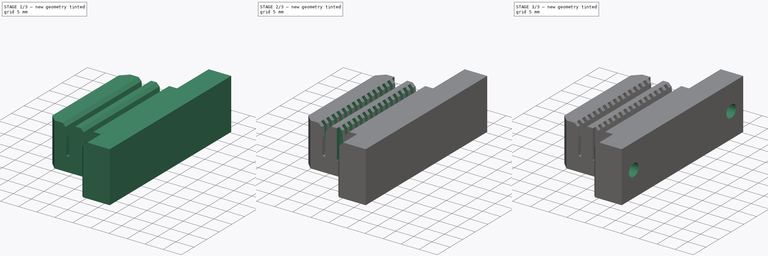
[diagram: build sequence overview — one tinted view per stage of 3, left to right]
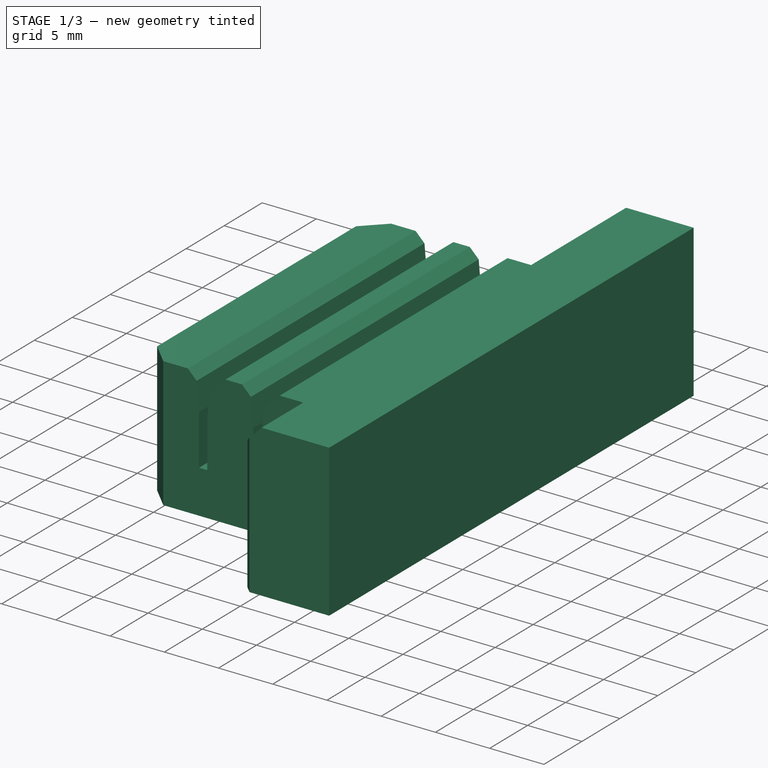
[diagram: stage 1 of 3 — iso view after this stage's code; geometry added in this stage tinted green]
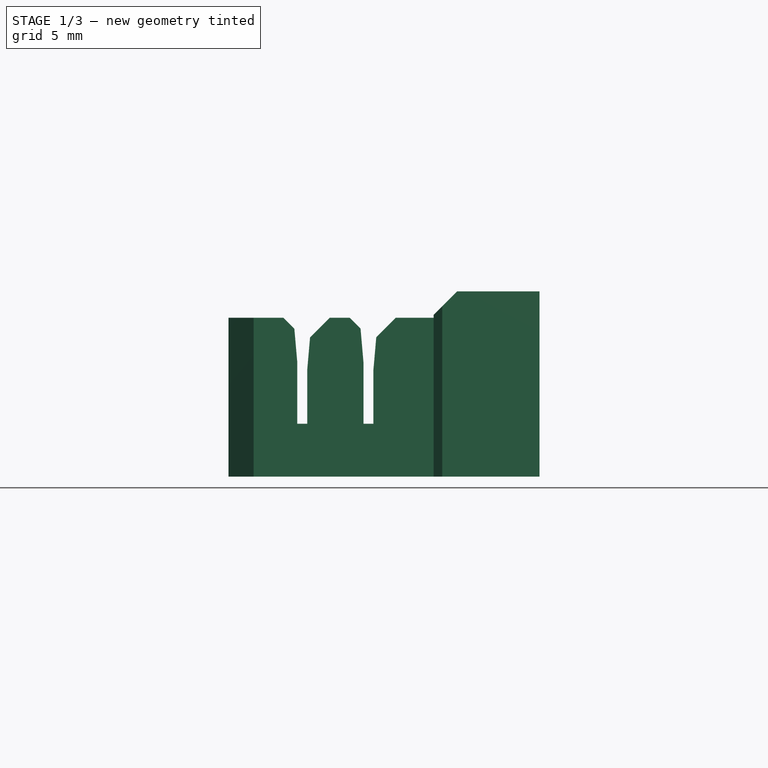
[diagram: stage 1 of 3 — front view after this stage's code; geometry added in this stage tinted green]
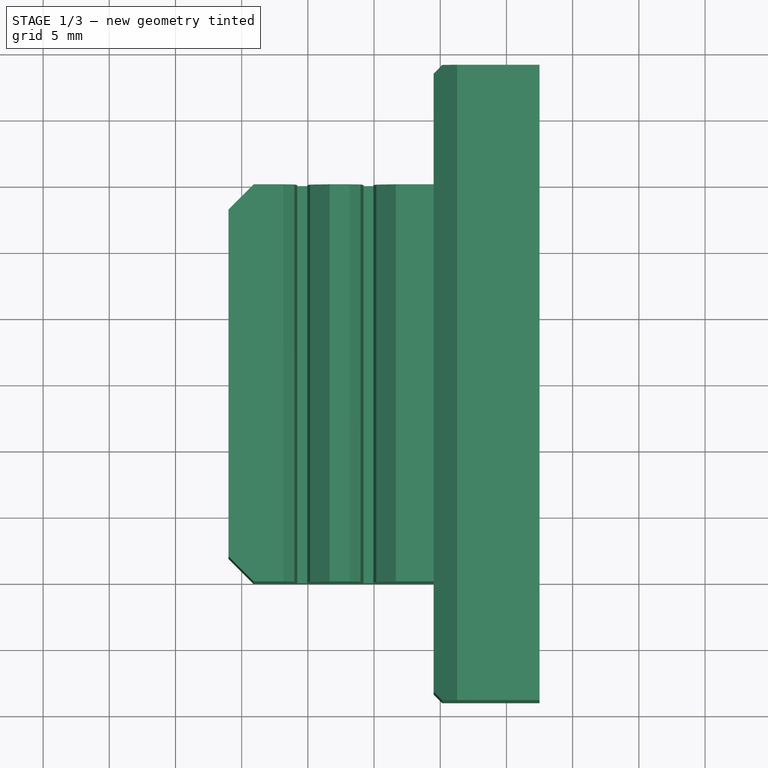
[diagram: stage 1 of 3 — top view after this stage's code; geometry added in this stage tinted green]
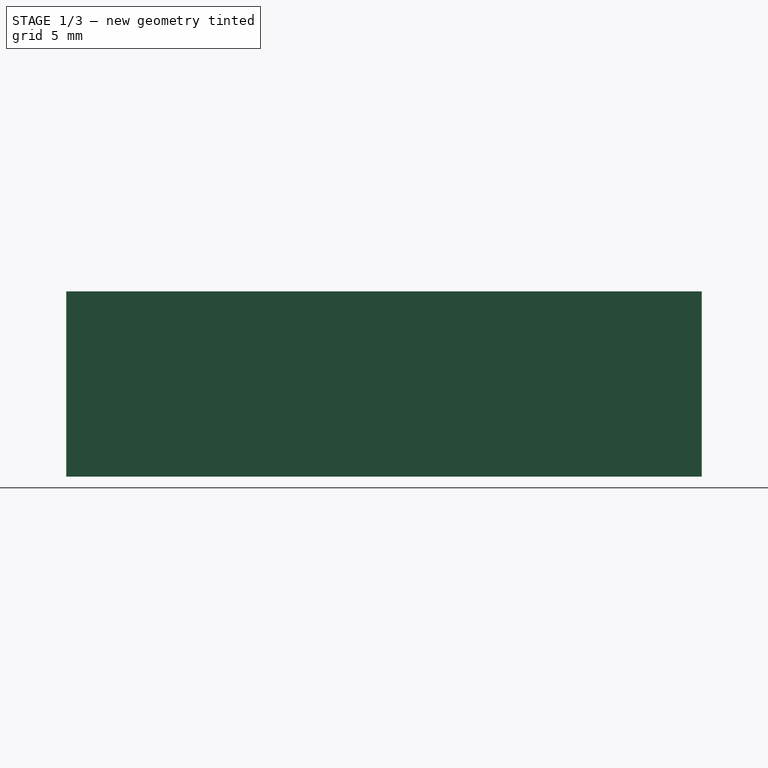
[diagram: stage 1 of 3 — right view after this stage's code; geometry added in this stage tinted green]
FCSTD DOCUMENT  (FreeCAD 0.21R33771 (Git))
Label: _Y-Belt-Holder
License: Creative Commons Attribution 4.0
LicenseURL: https://creativecommons.org/licenses/by/4.0/
objects: Sketcher::SketchObject×5, PartDesign::Pocket×4, PartDesign::Pad×1, PartDesign::LinearPattern×1, PartDesign::Body×1
note: 17 computed .brp shape members not serialized (recipe doc carries the construction recipe); baked Part::Feature solids carry a one-line shape summary decoded from their .brp

FEATURE [Sketcher::SketchObject] Sketch
  FullyConstrained = true
  MapMode = 5
  Support = -> [XY_Plane]
  sketch-geometry (12):
    g0: LineSegment StartX=12.5 StartY=24 StartZ=0 EndX=12.5 EndY=-24 EndZ=0
    g1: LineSegment StartX=12.5 StartY=-24 StartZ=0 EndX=5.15 EndY=-24 EndZ=0
    g2: LineSegment StartX=5.15 StartY=-24 StartZ=0 EndX=4.5 EndY=-23.35 EndZ=0
    g3: LineSegment StartX=4.5 StartY=-23.35 StartZ=0 EndX=4.5 EndY=-15 EndZ=0
    g4: LineSegment StartX=4.5 StartY=-15 StartZ=0 EndX=-9.1 EndY=-15 EndZ=0
    g5: LineSegment StartX=-9.1 StartY=-15 StartZ=0 EndX=-11 EndY=-13.1 EndZ=0
    g6: LineSegment StartX=-11 StartY=-13.1 StartZ=0 EndX=-11 EndY=13.1 EndZ=0
    g7: LineSegment StartX=-11 StartY=13.1 StartZ=0 EndX=-9.1 EndY=15 EndZ=0
    g8: LineSegment StartX=-9.1 StartY=15 StartZ=0 EndX=4.5 EndY=15 EndZ=0
    g9: LineSegment StartX=4.5 StartY=15 StartZ=0 EndX=4.5 EndY=23.35 EndZ=0
    g10: LineSegment StartX=4.5 StartY=23.35 StartZ=0 EndX=5.15 EndY=24 EndZ=0
    g11: LineSegment StartX=5.15 StartY=24 StartZ=0 EndX=12.5 EndY=24 EndZ=0
  constraints (34):
    c: Coincident(g0,g1)
    c: Horizontal(g1)
    c: Coincident(g1,g2)
    c: Coincident(g2,g3)
    c: Vertical(g3)
    c: Coincident(g3,g4)
    c: Horizontal(g4)
    c: Coincident(g4,g5)
    c: Coincident(g5,g6)
    c: Coincident(g6,g7)
    c: Coincident(g7,g8)
    c: Horizontal(g8)
    c: Coincident(g8,g9)
    c: Vertical(g9)
    c: Coincident(g9,g10)
    c: Coincident(g10,g11)
    c: Coincident(g11,g0)
    c: Horizontal(g11)
    c: DistanceX(g-1,g0) = 12.5
    c: DistanceY(g0,g0) = 48
    c: Symmetric(g0,g0,g-1)
    c: Symmetric(g5,g6,g-1)
    c: DistanceY(g6,g6) = 26.2
    c: Angle(g6,g7) = 2.35619
    c: Equal(g7,g5)
    c: Perpendicular(g7,g5)
    c: DistanceY(g4,g7) = 30
    c: DistanceX(g5,g-1) = 11
    c: Parallel(g7,g10)
    c: Parallel(g5,g2)
    c: DistanceX(g5,g2) = 15.5
    c: DistanceY(g1,g2) = 0.65
    c: Equal(g2,g10)
    c: Vertical(g8,g3)
FEATURE [PartDesign::Pad] Pad
  Direction = (0,0,1)
  Length = 14
  Length2 = 10
  Profile = -> Sketch
  ReferenceAxis = -> Sketch [N_Axis]
  Refine = true
  Type = 0
FEATURE [Sketcher::SketchObject] Sketch001
  FullyConstrained = true
  MapMode = 5
  Placement = pos=(0,0,0) rot=(1,0,0;1.5708rad)
  Support = -> [XZ_Plane]
  sketch-geometry (22):
    g0: LineSegment StartX=6.5 StartY=15 StartZ=0 EndX=6.5 EndY=14.23 EndZ=0
    g1: LineSegment StartX=6.5 StartY=14.23 StartZ=0 EndX=4.5 EndY=12.23 EndZ=0
    g2: LineSegment StartX=4.5 StartY=12.23 StartZ=0 EndX=4.5 EndY=12 EndZ=0
    g3: LineSegment StartX=4.5 StartY=12 StartZ=0 EndX=1.64 EndY=12 EndZ=0
    g4: LineSegment StartX=1.64 StartY=12 StartZ=0 EndX=0.165531 EndY=10.5255 EndZ=0
    g5: LineSegment StartX=0.165531 StartY=10.5255 StartZ=0 EndX=-0.05 EndY=8.062 EndZ=0
    g6: LineSegment StartX=-0.05 StartY=8.062 StartZ=0 EndX=-0.05 EndY=4 EndZ=0
    g7: LineSegment StartX=-0.05 StartY=4 StartZ=0 EndX=-0.8 EndY=4 EndZ=0
    g8: LineSegment StartX=-0.8 StartY=4 StartZ=0 EndX=-0.8 EndY=8.64 EndZ=0
    g9: LineSegment StartX=-0.8 StartY=8.64 StartZ=0 EndX=-1.02243 EndY=11.1824 EndZ=0
    g10: LineSegment StartX=-1.02243 StartY=11.1824 StartZ=0 EndX=-1.84 EndY=12 EndZ=0
    g11: LineSegment StartX=-1.84 StartY=12 StartZ=0 EndX=-3.36 EndY=12 EndZ=0
    g12: LineSegment StartX=-3.36 StartY=12 StartZ=0 EndX=-4.83447 EndY=10.5255 EndZ=0
    g13: LineSegment StartX=-4.83447 StartY=10.5255 StartZ=0 EndX=-5.05 EndY=8.062 EndZ=0
    g14: LineSegment StartX=-5.05 StartY=8.062 StartZ=0 EndX=-5.05 EndY=4 EndZ=0
    g15: LineSegment StartX=-5.05 StartY=4 StartZ=0 EndX=-5.8 EndY=4 EndZ=0
    g16: LineSegment StartX=-5.8 StartY=4 StartZ=0 EndX=-5.8 EndY=8.64 EndZ=0
    g17: LineSegment StartX=-5.8 StartY=8.64 StartZ=0 EndX=-6.02243 EndY=11.1824 EndZ=0
    g18: LineSegment StartX=-6.02243 StartY=11.1824 StartZ=0 EndX=-6.84 EndY=12 EndZ=0
    g19: LineSegment StartX=-6.84 StartY=12 StartZ=0 EndX=-12 EndY=12 EndZ=0
    g20: LineSegment StartX=-12 StartY=12 StartZ=0 EndX=-12 EndY=15 EndZ=0
    g21: LineSegment StartX=-12 StartY=15 StartZ=0 EndX=6.5 EndY=15 EndZ=0
  constraints (66):
    c: Vertical(g0)
    c: Coincident(g0,g1)
    c: Coincident(g1,g2)
    c: Vertical(g2)
    c: Coincident(g2,g3)
    c: Horizontal(g3)
    c: Coincident(g3,g4)
    c: Coincident(g4,g5)
    c: Coincident(g5,g6)
    c: Vertical(g6)
    c: Coincident(g6,g7)
    c: Horizontal(g7)
    c: Coincident(g7,g8)
    c: Vertical(g8)
    c: Coincident(g8,g9)
    c: Coincident(g9,g10)
    c: Coincident(g10,g11)
    c: Horizontal(g11)
    c: Coincident(g11,g12)
    c: Coincident(g12,g13)
    c: Coincident(g13,g14)
    c: Vertical(g14)
    c: Coincident(g14,g15)
    c: Horizontal(g15)
    c: Coincident(g15,g16)
    c: Vertical(g16)
    c: Coincident(g16,g17)
    c: Coincident(g17,g18)
    c: Coincident(g18,g19)
    c: Horizontal(g19)
    c: Coincident(g19,g20)
    c: Vertical(g20)
    c: Coincident(g20,g21)
    c: Coincident(g21,g0)
    c: Horizontal(g21)
    c: Horizontal(g7,g14)
    c: DistanceX(g7,g-1) = 0.8
    c: DistanceX(g7,g7) = 0.75
    c: DistanceY(g-1,g6) = 4
    c: Equal(g7,g15)
    c: DistanceX(g15,g7) = 5
    c: Horizontal(g13,g5)
    c: DistanceX(g19,g-1) = 12
    c: DistanceY(g-1,g19) = 12
    c: Horizontal(g18,g11)
    c: Horizontal(g10,g3)
    c: DistanceY(g20,g20) = 3
    c: DistanceX(g21,g21) = 18.5
    c: Angle(g0,g1) = 2.35619
    c: DistanceY(g2,g2) = 0.23
    c: DistanceX(g-1,g2) = 4.5
    c: Parallel(g1,g4)
    c: DistanceY(g6,g6) = 4.062
    c: Angle(g-2,g5) = 3.05433
    c: DistanceX(g3,g3) = 2.86
    c: Horizontal(g4,g12)
    c: Parallel(g5,g13)
    c: Equal(g4,g12)
    c: DistanceY(g8,g8) = 4.64
    c: Perpendicular(g10,g4)
    c: Perpendicular(g18,g12)
    c: Angle(g9,g8) = 3.05433
    c: DistanceX(g11,g11) = 1.52
    c: Horizontal(g9,g17)
    c: Horizontal(g16,g8)
    c: Parallel(g9,g17)
FEATURE [PartDesign::Pocket] Pocket
  BaseFeature = -> Pad
  Direction = (0,1,-2e-16)
  Length = 5
  Length2 = 5
  Midplane = true
  Profile = -> Sketch001
  ReferenceAxis = -> Sketch001 [N_Axis]
  Refine = true
  Type = 1
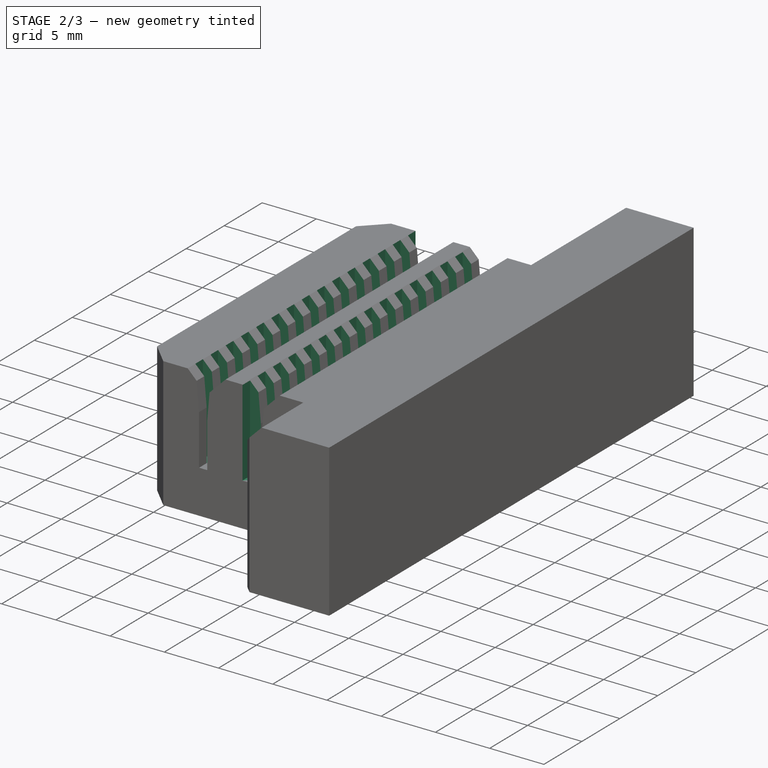
[diagram: stage 2 of 3 — iso view after this stage's code; geometry added in this stage tinted green]
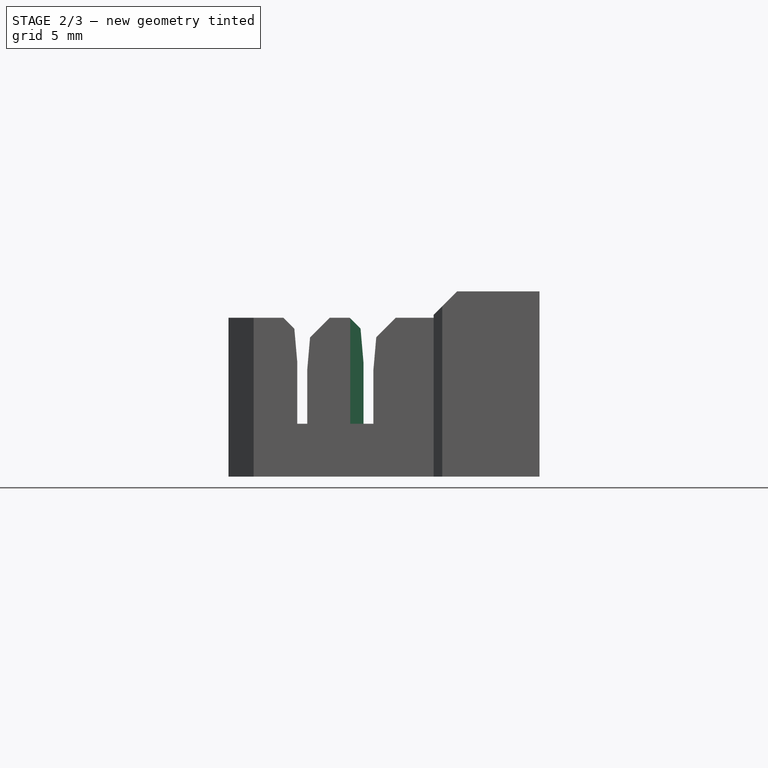
[diagram: stage 2 of 3 — front view after this stage's code; geometry added in this stage tinted green]
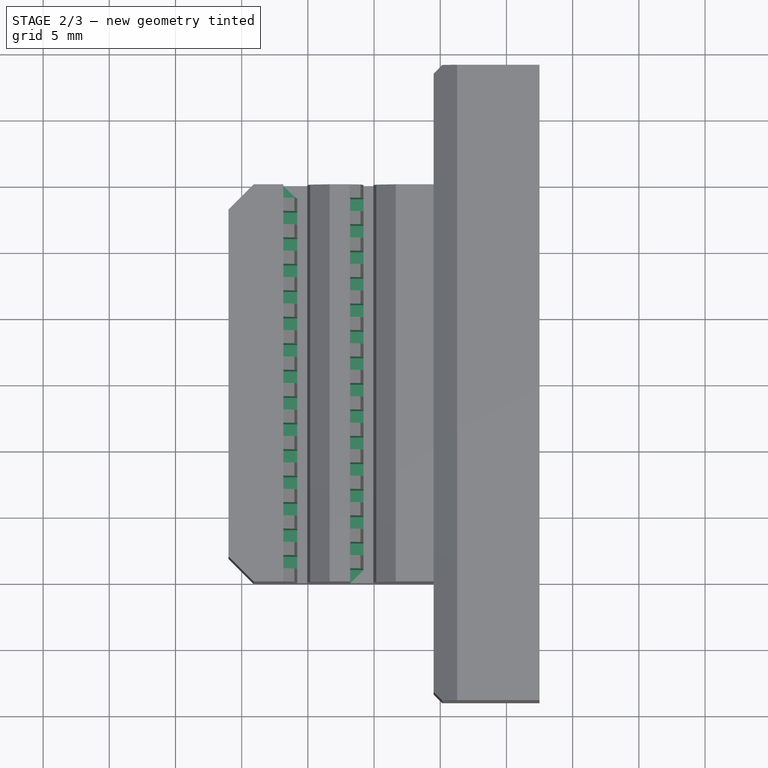
[diagram: stage 2 of 3 — top view after this stage's code; geometry added in this stage tinted green]
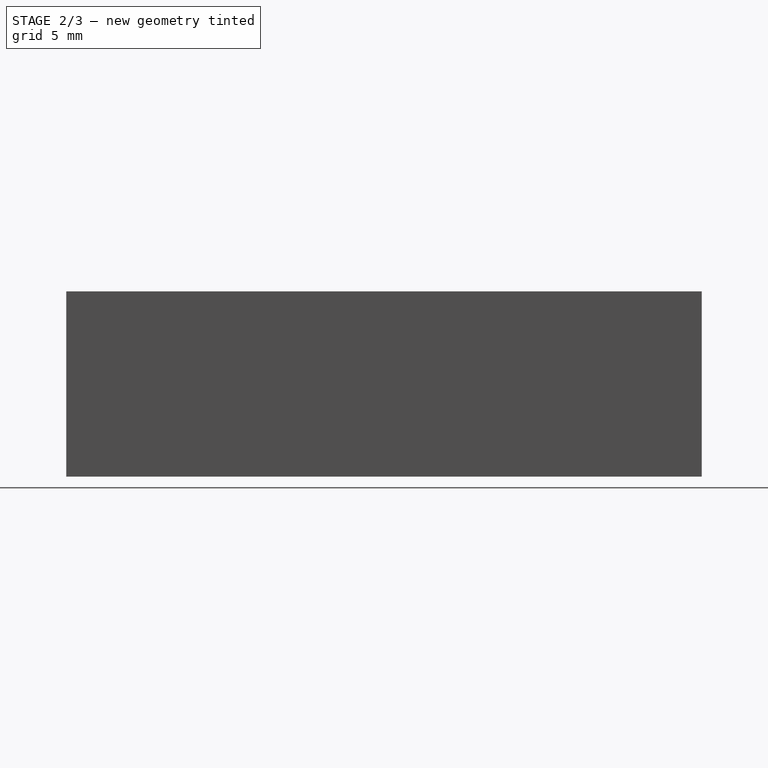
[diagram: stage 2 of 3 — right view after this stage's code; geometry added in this stage tinted green]
FEATURE [Sketcher::SketchObject] Sketch002
  AttachmentOffset = pos=(0,0,4) rot=(0,0,1;0rad)
  FullyConstrained = true
  MapMode = 5
  Placement = pos=(0,0,4) rot=(0,0,1;0rad)
  Support = -> [XY_Plane]
  sketch-geometry (8):
    g0: LineSegment StartX=-6.85 StartY=15 StartZ=0 EndX=-5.35 EndY=15 EndZ=0
    g1: LineSegment StartX=-5.35 StartY=15 StartZ=0 EndX=-5.35 EndY=14 EndZ=0
    g2: LineSegment StartX=-5.35 StartY=14 StartZ=0 EndX=-6.85 EndY=14 EndZ=0
    g3: LineSegment StartX=-6.85 StartY=14 StartZ=0 EndX=-6.85 EndY=15 EndZ=0
    g4: LineSegment StartX=-1.8 StartY=14 StartZ=0 EndX=-0.3 EndY=14 EndZ=0
    g5: LineSegment StartX=-0.3 StartY=14 StartZ=0 EndX=-0.3 EndY=13 EndZ=0
    g6: LineSegment StartX=-0.3 StartY=13 StartZ=0 EndX=-1.8 EndY=13 EndZ=0
    g7: LineSegment StartX=-1.8 StartY=13 StartZ=0 EndX=-1.8 EndY=14 EndZ=0
  constraints (24):
    c: Coincident(g0,g1)
    c: Coincident(g1,g2)
    c: Coincident(g2,g3)
    c: Coincident(g3,g0)
    c: Horizontal(g0)
    c: Horizontal(g2)
    c: Vertical(g1)
    c: Vertical(g3)
    c: Coincident(g4,g5)
    c: Coincident(g5,g6)
    c: Coincident(g6,g7)
    c: Coincident(g7,g4)
    c: Horizontal(g4)
    c: Horizontal(g6)
    c: Vertical(g5)
    c: Vertical(g7)
    c: DistanceX(g6,g-1) = 1.8
    c: DistanceX(g2,g-1) = 6.85
    c: DistanceY(g-1,g5) = 13
    c: DistanceY(g5,g5) = 1
    c: Equal(g7,g3)
    c: Horizontal(g1,g4)
    c: Equal(g2,g6)
    c: DistanceX(g4,g4) = 1.5
FEATURE [PartDesign::Pocket] Pocket001
  BaseFeature = -> Pocket
  Direction = (0,0,-1)
  Length = 5
  Length2 = 5
  Profile = -> Sketch002
  ReferenceAxis = -> Sketch002 [N_Axis]
  Refine = true
  Reversed = true
  Type = 1
FEATURE [PartDesign::LinearPattern] LinearPattern
  BaseFeature = -> Pocket001
  Direction = -> Sketch002 [V_Axis]
  Length = 28
  Occurrences = 15
  Originals = -> [Pocket001]
  Refine = true
  Reversed = true
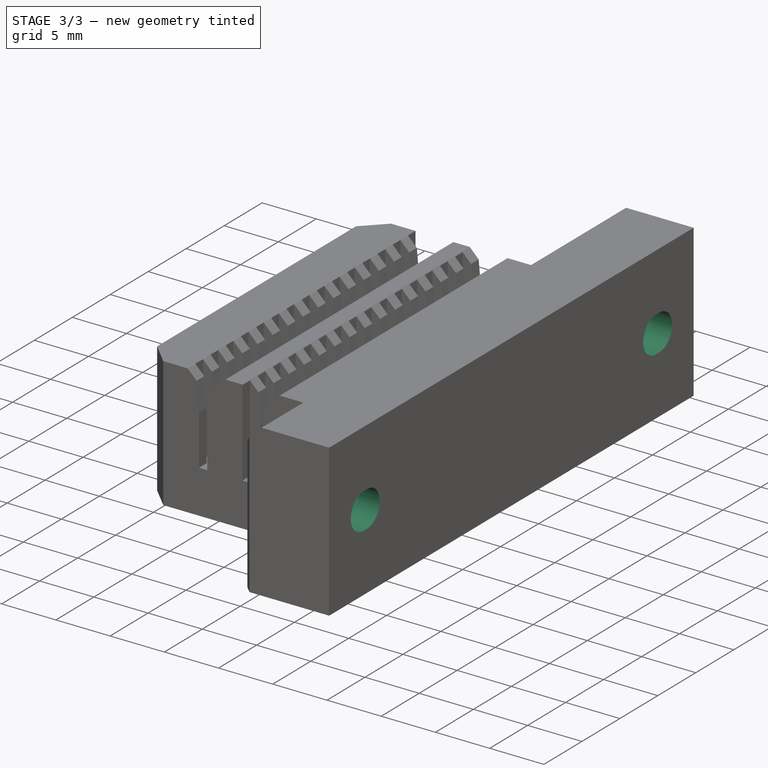
[diagram: stage 3 of 3 — iso view after this stage's code; geometry added in this stage tinted green]
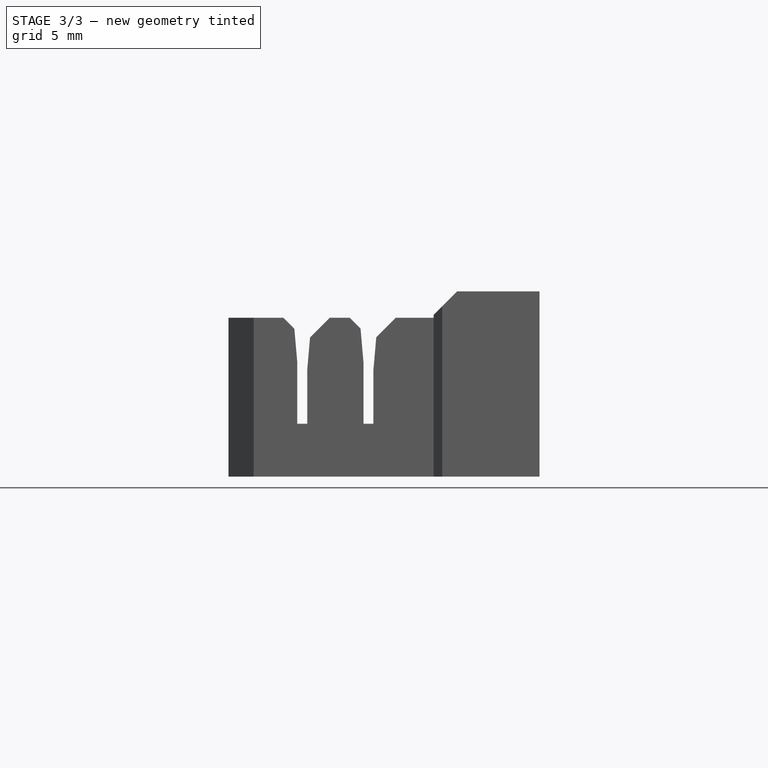
[diagram: stage 3 of 3 — front view after this stage's code; geometry added in this stage tinted green]
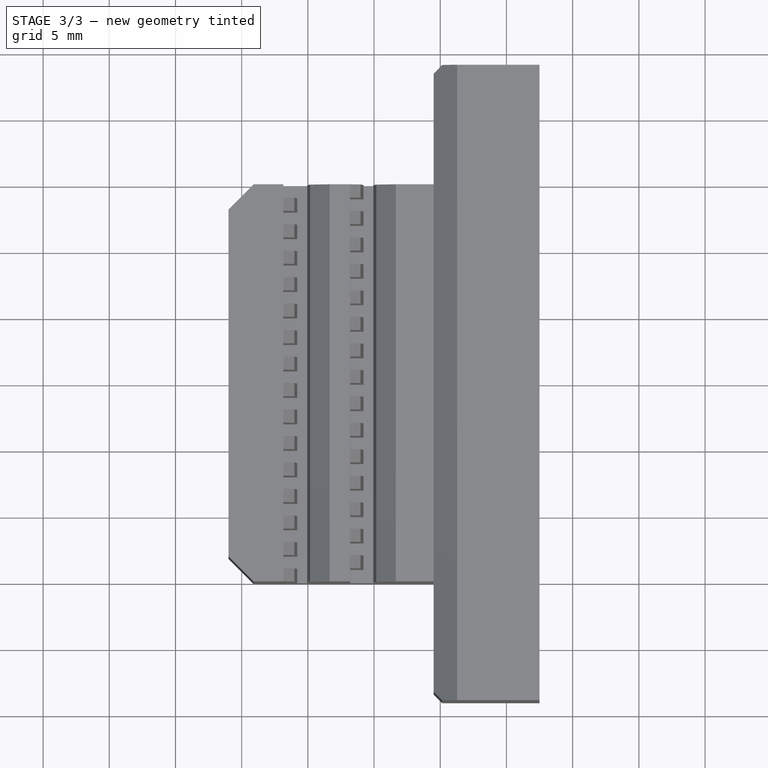
[diagram: stage 3 of 3 — top view after this stage's code; geometry added in this stage tinted green]
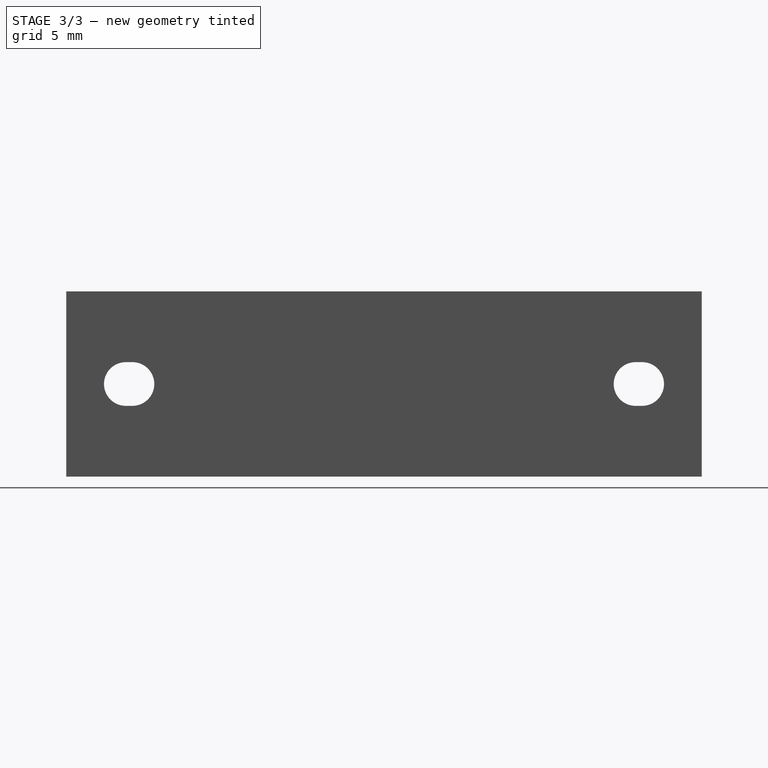
[diagram: stage 3 of 3 — right view after this stage's code; geometry added in this stage tinted green]
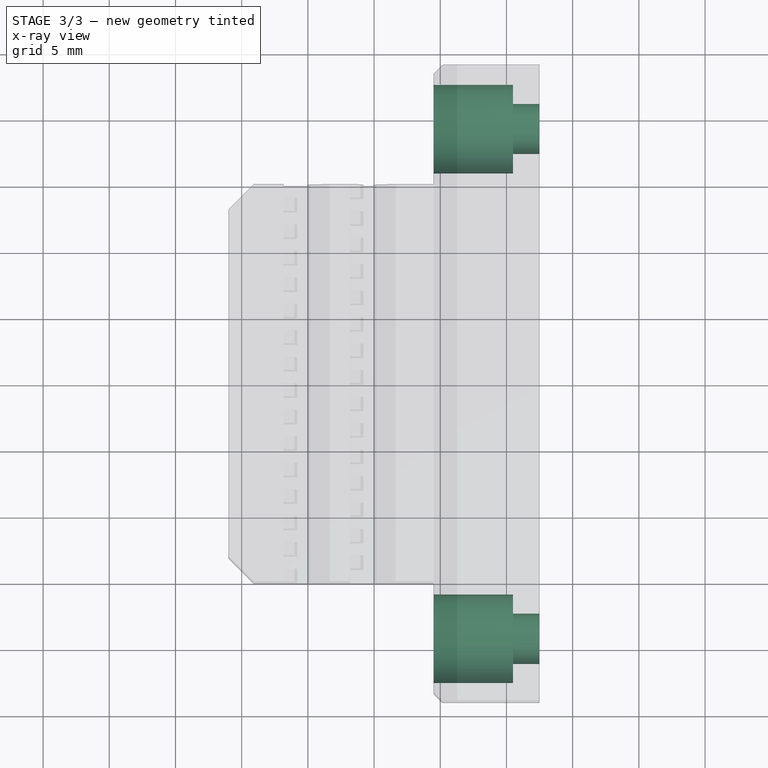
[diagram: stage 3 of 3 — x-ray composite at the top view; earlier geometry ghosted, this stage's added geometry solid]
FEATURE [Sketcher::SketchObject] Sketch003
  AttachmentOffset = pos=(0,0,4.5) rot=(0,0,1;0rad)
  FullyConstrained = true
  MapMode = 5
  Placement = pos=(4.5,-1e-15,1e-15) rot=(0.57735,0.57735,0.57735;2.0944rad)
  Support = -> [YZ_Plane]
  sketch-geometry (8):
    g0: ArcOfCircle CenterX=-19.5 CenterY=7 CenterZ=0 NormalX=0 NormalY=0 NormalZ=1 AngleXU=0 Radius=1.65 StartAngle=1.5708 EndAngle=4.71239
    g1: ArcOfCircle CenterX=-19 CenterY=7 CenterZ=0 NormalX=0 NormalY=0 NormalZ=1 AngleXU=0 Radius=1.65 StartAngle=4.71239 EndAngle=7.85398
    g2: LineSegment StartX=-19.5 StartY=5.35 StartZ=0 EndX=-19 EndY=5.35 EndZ=0
    g3: LineSegment StartX=-19 StartY=8.65 StartZ=0 EndX=-19.5 EndY=8.65 EndZ=0
    g4: ArcOfCircle CenterX=19 CenterY=7 CenterZ=0 NormalX=0 NormalY=0 NormalZ=1 AngleXU=0 Radius=1.65 StartAngle=1.5708 EndAngle=4.71239
    g5: ArcOfCircle CenterX=19.5 CenterY=7 CenterZ=0 NormalX=0 NormalY=0 NormalZ=1 AngleXU=0 Radius=1.65 StartAngle=4.71239 EndAngle=7.85398
    g6: LineSegment StartX=19 StartY=5.35 StartZ=0 EndX=19.5 EndY=5.35 EndZ=0
    g7: LineSegment StartX=19.5 StartY=8.65 StartZ=0 EndX=19 EndY=8.65 EndZ=0
  constraints (19):
    c: Tangent(g0,g2) = -1.5708
    c: Tangent(g2,g1) = -1.5708
    c: Tangent(g1,g3) = -1.5708
    c: Tangent(g3,g0) = -1.5708
    c: Equal(g0,g1)
    c: Tangent(g4,g6) = -1.5708
    c: Tangent(g6,g5) = -1.5708
    c: Tangent(g5,g7) = -1.5708
    c: Tangent(g7,g4) = -1.5708
    c: Equal(g4,g5)
    c: Horizontal(g3)
    c: Horizontal(g7)
    c: Radius(g0) = 1.65
    c: DistanceY(g-1,g0) = 7
    c: Equal(g0,g5)
    c: DistanceX(g3,g3) = 0.5
    c: Equal(g3,g7)
    c: Symmetric(g4,g1,g-2)
    c: DistanceX(g1,g4) = 38
FEATURE [Sketcher::SketchObject] Sketch004
  AttachmentOffset = pos=(0,0,4.5) rot=(0,0,1;0rad)
  FullyConstrained = true
  MapMode = 5
  Placement = pos=(4.5,-1e-15,1e-15) rot=(0.57735,0.57735,0.57735;2.0944rad)
  Support = -> [YZ_Plane]
  sketch-geometry (8):
    g0: ArcOfCircle CenterX=-19.5 CenterY=7 CenterZ=0 NormalX=0 NormalY=0 NormalZ=1 AngleXU=0 Radius=3.1 StartAngle=1.5708 EndAngle=4.71239
    g1: ArcOfCircle CenterX=-19 CenterY=7 CenterZ=0 NormalX=0 NormalY=0 NormalZ=1 AngleXU=0 Radius=3.1 StartAngle=4.71239 EndAngle=7.85398
    g2: LineSegment StartX=-19.5 StartY=3.9 StartZ=0 EndX=-19 EndY=3.9 EndZ=0
    g3: LineSegment StartX=-19 StartY=10.1 StartZ=0 EndX=-19.5 EndY=10.1 EndZ=0
    g4: ArcOfCircle CenterX=19 CenterY=7 CenterZ=0 NormalX=0 NormalY=0 NormalZ=1 AngleXU=0 Radius=3.1 StartAngle=1.5708 EndAngle=4.71239
    g5: ArcOfCircle CenterX=19.5 CenterY=7 CenterZ=0 NormalX=0 NormalY=0 NormalZ=1 AngleXU=0 Radius=3.1 StartAngle=4.71239 EndAngle=7.85398
    g6: LineSegment StartX=19 StartY=3.9 StartZ=0 EndX=19.5 EndY=3.9 EndZ=0
    g7: LineSegment StartX=19.5 StartY=10.1 StartZ=0 EndX=19 EndY=10.1 EndZ=0
  constraints (19):
    c: Tangent(g0,g2) = -1.5708
    c: Tangent(g2,g1) = -1.5708
    c: Tangent(g1,g3) = -1.5708
    c: Tangent(g3,g0) = -1.5708
    c: Equal(g0,g1)
    c: Tangent(g4,g6) = -1.5708
    c: Tangent(g6,g5) = -1.5708
    c: Tangent(g5,g7) = -1.5708
    c: Tangent(g7,g4) = -1.5708
    c: Equal(g4,g5)
    c: Horizontal(g3)
    c: Horizontal(g7)
    c: Radius(g0) = 3.1
    c: DistanceY(g-1,g0) = 7
    c: Equal(g0,g5)
    c: DistanceX(g3,g3) = 0.5
    c: Equal(g3,g7)
    c: Symmetric(g4,g1,g-2)
    c: DistanceX(g1,g4) = 38
FEATURE [PartDesign::Pocket] Pocket002
  BaseFeature = -> LinearPattern
  Direction = (-1,2e-16,-3e-16)
  Length = 5
  Length2 = 5
  Profile = -> Sketch003
  ReferenceAxis = -> Sketch003 [N_Axis]
  Refine = true
  Reversed = true
  Type = 1
FEATURE [PartDesign::Pocket] Pocket003
  BaseFeature = -> Pocket002
  Direction = (-1,2e-16,-3e-16)
  Length = 6
  Length2 = 5
  Profile = -> Sketch004
  ReferenceAxis = -> Sketch004 [N_Axis]
  Refine = true
  Reversed = true
  Type = 0
FEATURE [PartDesign::Body] Body  label="Y-Belt-Holder"
  Group = -> [Sketch,Pad,Sketch001,Pocket,Sketch002,Pocket001,LinearPattern,Sketch003,Sketch004,Pocket002,Pocket003]
  Origin = -> Origin
  Tip = -> Pocket003
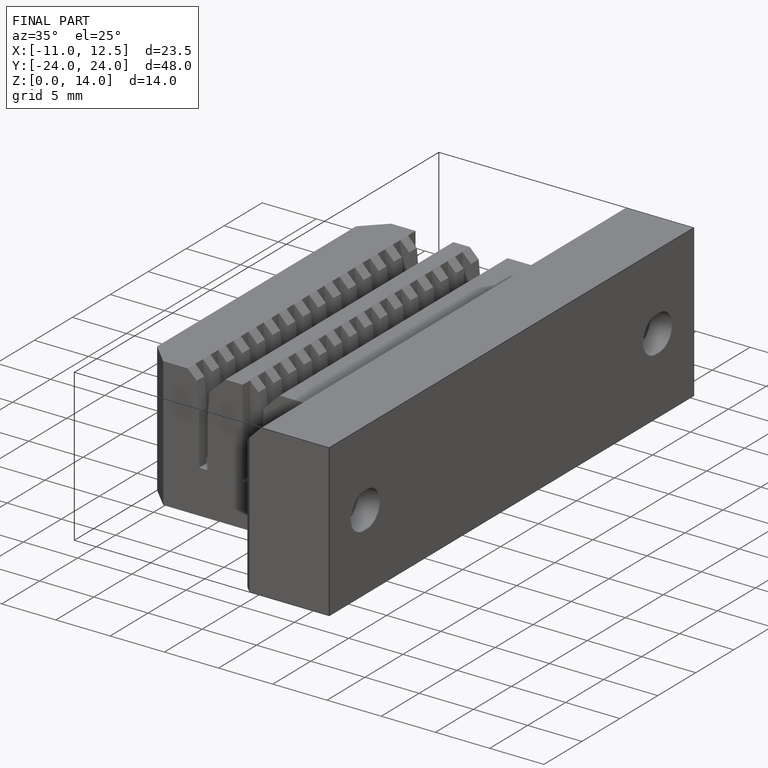
[diagram: finished part — iso view with bounding-box wireframe]
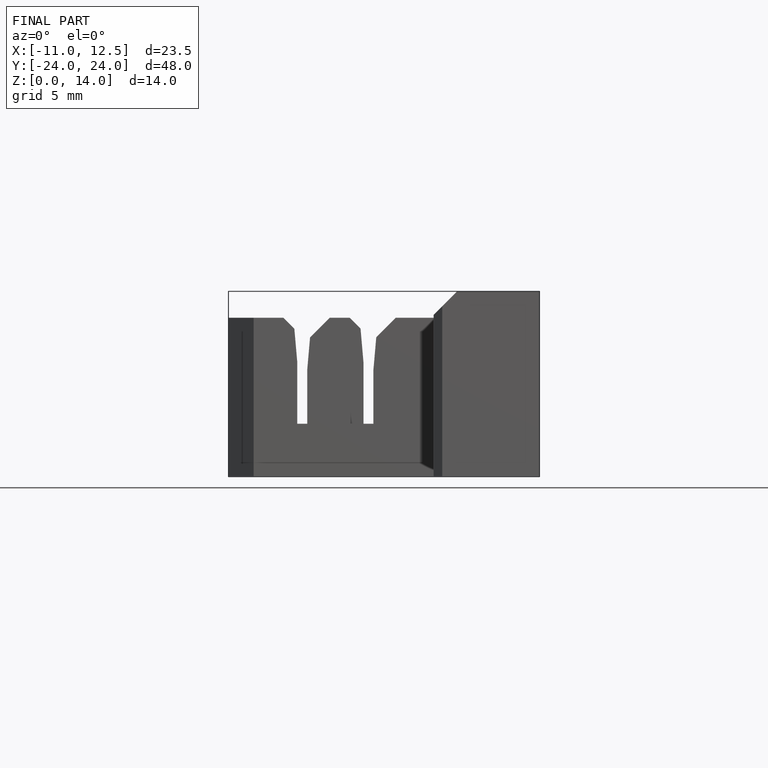
[diagram: finished part — front view with bounding-box wireframe]
